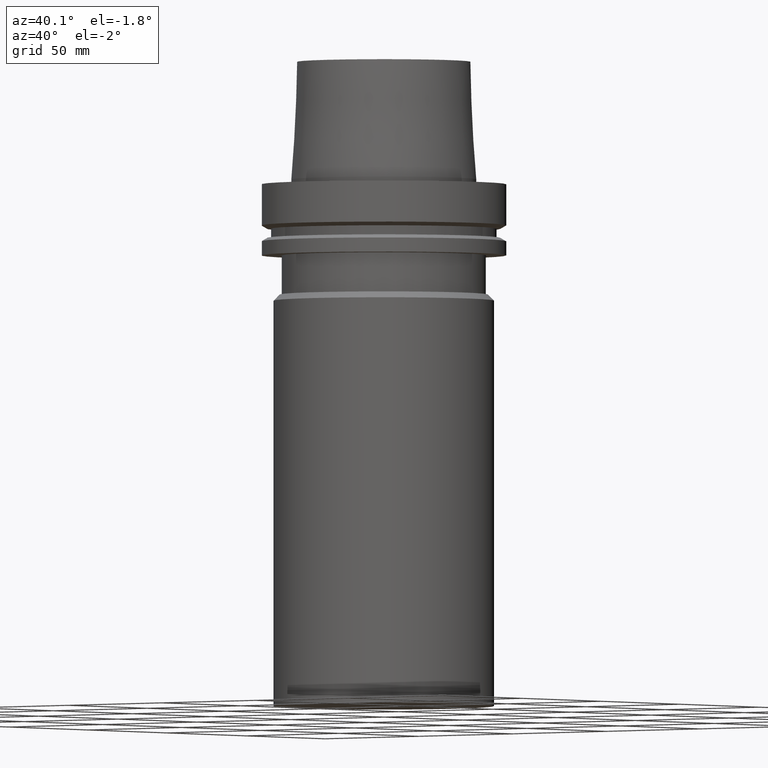
[diagram: clean part render]
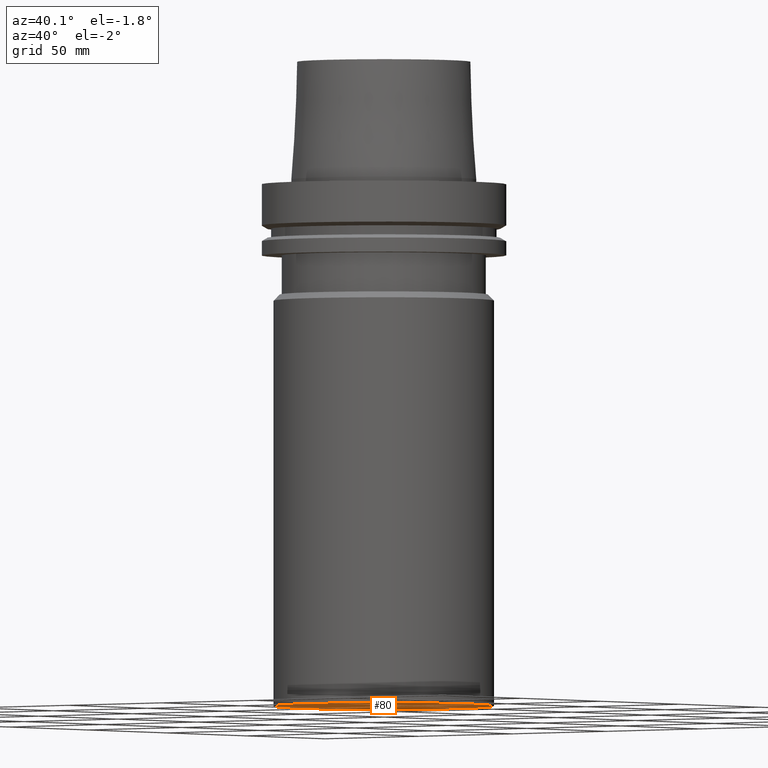
[diagram: same view with one face highlighted and labeled with its STEP entity id]
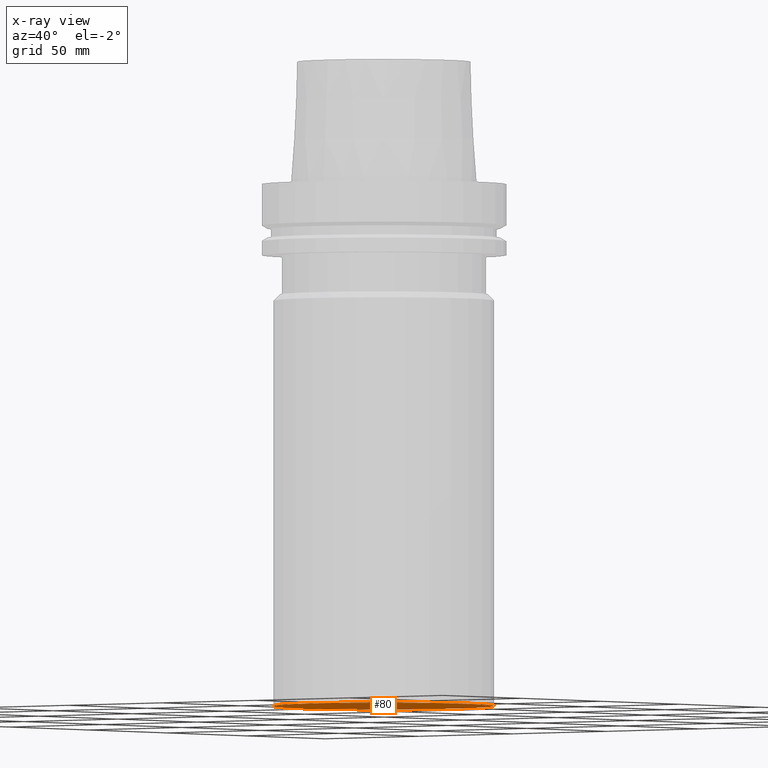
[diagram: x-ray of the same camera — body ghosted, the highlighted face saturated]
A machine part, auxiliary view. The second image highlights one B-rep face of the part: STEP entity #80.
The next image is the same camera in x-ray: the body ghosted, the highlighted face saturated — about 0% of this face is hidden behind the body in this view.
In plain terms, the highlighted planar face has unit normal (0, 0, -1).
Its self-contained STEP definition (entity closure, byte-faithful):
#80=ADVANCED_FACE('Unnamed[1]',(#195),#196,.T.);
#85=EDGE_CURVE('Unnamed[1]',#203,#203,#204,.T.);
#195=FACE_OUTER_BOUND('',#344,.T.);
#196=PLANE('',#345);
#203=VERTEX_POINT('',#354);
#204=CIRCLE('',#355,45.0);
#344=EDGE_LOOP('',(#507));
#345=AXIS2_PLACEMENT_3D('',#508,#509,#510);
#354=CARTESIAN_POINT('',(1.30424884109193E-014,45.0,-213.0));
#355=AXIS2_PLACEMENT_3D('',#517,#518,#519);
#507=ORIENTED_EDGE('',*,*,#85,.T.);
#508=CARTESIAN_POINT('',(1.30424884109193E-014,22.5,-213.0));
#509=DIRECTION('',(6.12323399573677E-017,1.22464679914735E-016,-1.0));
#510=DIRECTION('',(-1.23259516440783E-032,1.0,1.22464679914735E-016));
#517=CARTESIAN_POINT('',(1.30424884109193E-014,2.60849768218386E-014,-213.0));
#518=DIRECTION('',(6.12323399573677E-017,1.22464679914735E-016,-1.0));
#519=DIRECTION('',(-1.23259516440783E-032,1.0,1.22464679914735E-016));